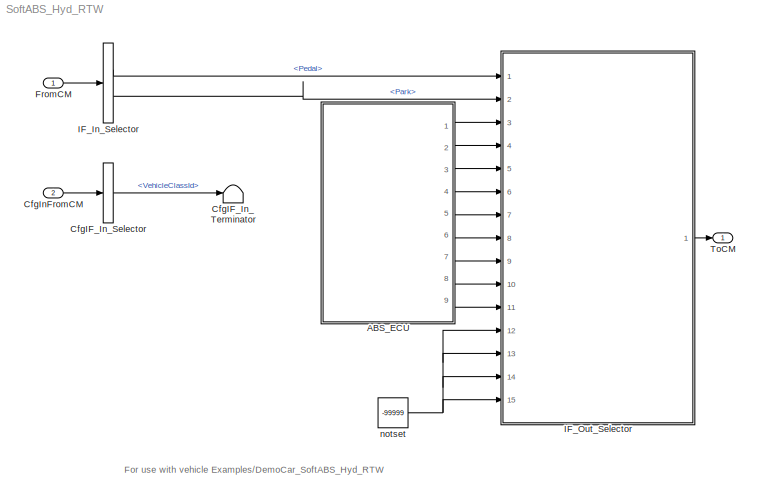
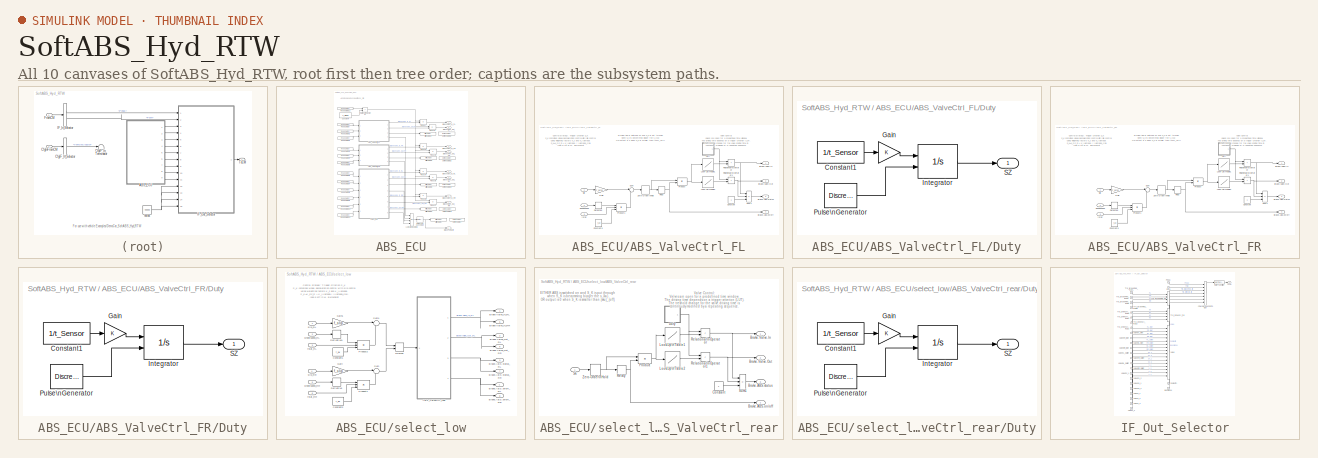
[diagram: thumbnail index - all 10 canvases of the model, root first then tree order]
MODEL SoftABS_Hyd_RTW
KIND model
CONFIG InitFcn = vehicle = 'Car'; if ~length(which('cmcmd')), cmenv; end\nSoftABS_Hyd_RTW_bus\nSoftABS_Hyd_RTW_params
CONFIG PreLoadFcn = vehicle = 'Car'; if ~length(which('cmcmd')), cmenv; end\nSoftABS_Hyd_RTW_bus\nSoftABS_Hyd_RTW_params
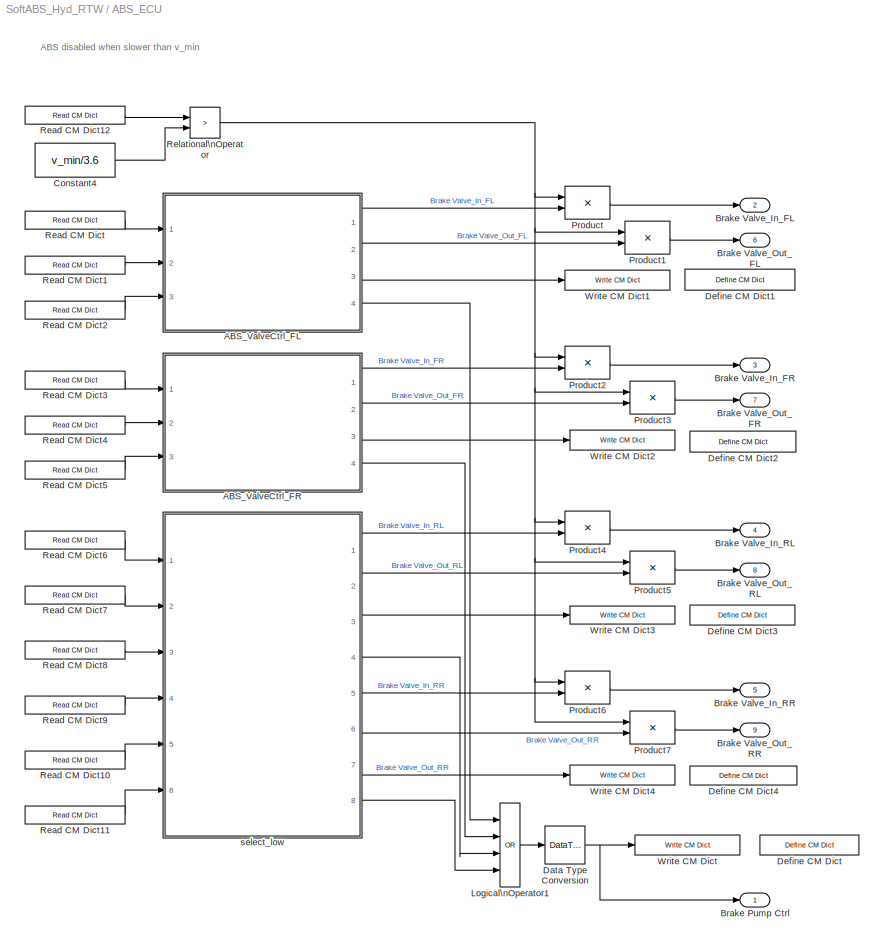
BLOCK [SubSystem] ABS_ECU
  Ports = [0, 9]
  RequestExecContextInheritance = off
  SID = 222
BLOCK [SubSystem] ABS_ECU/ABS_ValveCtrl_FL
  Ports = [3, 4]
  RequestExecContextInheritance = off
  SID = 223
BLOCK [Outport] ABS_ECU/ABS_ValveCtrl_FL/Brake.ABS.on//off
  Port = 4
  SID = 249
  VectorParamsAs1DForOutWhenUnconnected = off
BLOCK [Outport] ABS_ECU/ABS_ValveCtrl_FL/Brake.ABS.status
  Port = 3
  SID = 248
  VectorParamsAs1DForOutWhenUnconnected = off
BLOCK [Outport] ABS_ECU/ABS_ValveCtrl_FL/Brake.Valve.In
  SID = 246
  VectorParamsAs1DForOutWhenUnconnected = off
BLOCK [Outport] ABS_ECU/ABS_ValveCtrl_FL/Brake.Valve.Out
  Port = 2
  SID = 247
  VectorParamsAs1DForOutWhenUnconnected = off
BLOCK [Constant] ABS_ECU/ABS_ValveCtrl_FL/Constant
  SID = 227
BLOCK [Constant] ABS_ECU/ABS_ValveCtrl_FL/Constant3
  SID = 228
  Value = f_ax
BLOCK [Derivative] ABS_ECU/ABS_ValveCtrl_FL/Derivative
  SID = 229
BLOCK [SubSystem] ABS_ECU/ABS_ValveCtrl_FL/Duty
  Ports = [0, 1]
  RequestExecContextInheritance = off
  SID = 230
BLOCK [Constant] ABS_ECU/ABS_ValveCtrl_FL/Duty/Constant1
  SID = 231
  Value = 1/t_Sensor
BLOCK [Gain] ABS_ECU/ABS_ValveCtrl_FL/Duty/Gain
  SID = 367
BLOCK [Integrator] ABS_ECU/ABS_ValveCtrl_FL/Duty/Integrator
  ExternalReset = either
  Ports = [2, 1]
  SID = 232
BLOCK [DiscretePulseGenerator] ABS_ECU/ABS_ValveCtrl_FL/Duty/Pulse\nGenerator
  Period = t_Sensor*2
  Ports = [0, 1]
  PulseType = Time based
  PulseWidth = 50
  SID = 233
BLOCK [Outport] ABS_ECU/ABS_ValveCtrl_FL/Duty/SZ
  SID = 234
  VectorParamsAs1DForOutWhenUnconnected = off
BLOCK [Gain] ABS_ECU/ABS_ValveCtrl_FL/Gain
  Gain = f_slip
  OutDataTypeStr = Inherit: Same as input
  ParamDataTypeStr = Inherit: Same as input
  SID = 235
  SaturateOnIntegerOverflow = on
BLOCK [Lookup] ABS_ECU/ABS_ValveCtrl_FL/Look-Up\nTable1
  InputValues = Valve_LUTin_VA
  LookUpMeth = Interpolation-Use End Values
  SID = 236
  Table = ValveIn_LUTout_VA
BLOCK [Lookup] ABS_ECU/ABS_ValveCtrl_FL/Look-Up\nTable2
  InputValues = Valve_LUTin_VA
  LookUpMeth = Interpolation-Use End Values
  SID = 237
  Table = ValveOut_LUTout_VA
BLOCK [Product] ABS_ECU/ABS_ValveCtrl_FL/Product
  OutDataTypeStr = Inherit: Same as first input
  Ports = [2, 1]
  SID = 238
  SaturateOnIntegerOverflow = on
BLOCK [Product] ABS_ECU/ABS_ValveCtrl_FL/Product1
  InputSameDT = on
  Inputs = 3
  OutDataTypeStr = Inherit: Same as first input
  Ports = [3, 1]
  SID = 239
  SaturateOnIntegerOverflow = on
BLOCK [RelationalOperator] ABS_ECU/ABS_ValveCtrl_FL/Relational\nOperator
  InputSameDT = off
  Operator = <
  Ports = [2, 1]
  SID = 240
  SampleTime = 0.001
BLOCK [RelationalOperator] ABS_ECU/ABS_ValveCtrl_FL/Relational\nOperator1
  InputSameDT = off
  Operator = <
  Ports = [2, 1]
  SID = 241
  SampleTime = 0.001
BLOCK [Relay] ABS_ECU/ABS_ValveCtrl_FL/Relay
  OffSwitchValue = sku_off_VA
  OnSwitchValue = sku_VA
  SID = 242
BLOCK [Sum] ABS_ECU/ABS_ValveCtrl_FL/Sum
  InputSameDT = on
  Inputs = |--
  OutDataTypeStr = Inherit: Same as first input
  Ports = [2, 1]
  SID = 243
  SaturateOnIntegerOverflow = on
BLOCK [Sum] ABS_ECU/ABS_ValveCtrl_FL/Sum1
  IconShape = rectangular
  Inputs = --+
  Ports = [3, 1]
  SID = 244
  SaturateOnIntegerOverflow = on
BLOCK [ZeroOrderHold] ABS_ECU/ABS_ValveCtrl_FL/Zero-Order\nHold
  SID = 245
  SampleTime = t_Sensor
BLOCK [Inport] ABS_ECU/ABS_ValveCtrl_FL/rstat
  Port = 3
  SID = 226
BLOCK [Inport] ABS_ECU/ABS_ValveCtrl_FL/slip
  SID = 224
BLOCK [Inport] ABS_ECU/ABS_ValveCtrl_FL/wheelspeed
  Port = 2
  SID = 225
BLOCK [SubSystem] ABS_ECU/ABS_ValveCtrl_FR
  Ports = [3, 4]
  RequestExecContextInheritance = off
  SID = 250
BLOCK [Outport] ABS_ECU/ABS_ValveCtrl_FR/Brake.ABS.on//off
  Port = 4
  SID = 276
  VectorParamsAs1DForOutWhenUnconnected = off
BLOCK [Outport] ABS_ECU/ABS_ValveCtrl_FR/Brake.ABS.status
  Port = 3
  SID = 275
  VectorParamsAs1DForOutWhenUnconnected = off
BLOCK [Outport] ABS_ECU/ABS_ValveCtrl_FR/Brake.Valve.In
  SID = 273
  VectorParamsAs1DForOutWhenUnconnected = off
BLOCK [Outport] ABS_ECU/ABS_ValveCtrl_FR/Brake.Valve.Out
  Port = 2
  SID = 274
  VectorParamsAs1DForOutWhenUnconnected = off
BLOCK [Constant] ABS_ECU/ABS_ValveCtrl_FR/Constant
  SID = 254
BLOCK [Constant] ABS_ECU/ABS_ValveCtrl_FR/Constant3
  SID = 255
  Value = f_ax
BLOCK [Derivative] ABS_ECU/ABS_ValveCtrl_FR/Derivative
  SID = 256
BLOCK [SubSystem] ABS_ECU/ABS_ValveCtrl_FR/Duty
  Ports = [0, 1]
  RequestExecContextInheritance = off
  SID = 257
BLOCK [Constant] ABS_ECU/ABS_ValveCtrl_FR/Duty/Constant1
  SID = 258
  Value = 1/t_Sensor
BLOCK [Gain] ABS_ECU/ABS_ValveCtrl_FR/Duty/Gain
  SID = 368
BLOCK [Integrator] ABS_ECU/ABS_ValveCtrl_FR/Duty/Integrator
  ExternalReset = either
  Ports = [2, 1]
  SID = 259
BLOCK [DiscretePulseGenerator] ABS_ECU/ABS_ValveCtrl_FR/Duty/Pulse\nGenerator
  Period = t_Sensor*2
  Ports = [0, 1]
  PulseType = Time based
  PulseWidth = 50
  SID = 260
BLOCK [Outport] ABS_ECU/ABS_ValveCtrl_FR/Duty/SZ
  SID = 261
  VectorParamsAs1DForOutWhenUnconnected = off
BLOCK [Gain] ABS_ECU/ABS_ValveCtrl_FR/Gain
  Gain = f_slip
  OutDataTypeStr = Inherit: Same as input
  ParamDataTypeStr = Inherit: Same as input
  SID = 262
  SaturateOnIntegerOverflow = on
BLOCK [Lookup] ABS_ECU/ABS_ValveCtrl_FR/Look-Up\nTable1
  InputValues = Valve_LUTin_VA
  LookUpMeth = Interpolation-Use End Values
  SID = 263
  Table = ValveIn_LUTout_VA
BLOCK [Lookup] ABS_ECU/ABS_ValveCtrl_FR/Look-Up\nTable2
  InputValues = Valve_LUTin_VA
  LookUpMeth = Interpolation-Use End Values
  SID = 264
  Table = ValveOut_LUTout_VA
BLOCK [Product] ABS_ECU/ABS_ValveCtrl_FR/Product
  OutDataTypeStr = Inherit: Same as first input
  Ports = [2, 1]
  SID = 265
  SaturateOnIntegerOverflow = on
BLOCK [Product] ABS_ECU/ABS_ValveCtrl_FR/Product1
  InputSameDT = on
  Inputs = 3
  OutDataTypeStr = Inherit: Same as first input
  Ports = [3, 1]
  SID = 266
  SaturateOnIntegerOverflow = on
BLOCK [RelationalOperator] ABS_ECU/ABS_ValveCtrl_FR/Relational\nOperator
  InputSameDT = off
  Operator = <
  Ports = [2, 1]
  SID = 267
  SampleTime = 0.001
BLOCK [RelationalOperator] ABS_ECU/ABS_ValveCtrl_FR/Relational\nOperator1
  InputSameDT = off
  Operator = <
  Ports = [2, 1]
  SID = 268
  SampleTime = 0.001
BLOCK [Relay] ABS_ECU/ABS_ValveCtrl_FR/Relay
  OffSwitchValue = sku_off_VA
  OnSwitchValue = sku_VA
  SID = 269
BLOCK [Sum] ABS_ECU/ABS_ValveCtrl_FR/Sum
  InputSameDT = on
  Inputs = |--
  OutDataTypeStr = Inherit: Same as first input
  Ports = [2, 1]
  SID = 270
  SaturateOnIntegerOverflow = on
BLOCK [Sum] ABS_ECU/ABS_ValveCtrl_FR/Sum1
  IconShape = rectangular
  Inputs = --+
  Ports = [3, 1]
  SID = 271
  SaturateOnIntegerOverflow = on
BLOCK [ZeroOrderHold] ABS_ECU/ABS_ValveCtrl_FR/Zero-Order\nHold
  SID = 272
  SampleTime = t_Sensor
BLOCK [Inport] ABS_ECU/ABS_ValveCtrl_FR/rstat
  Port = 3
  SID = 253
BLOCK [Inport] ABS_ECU/ABS_ValveCtrl_FR/slip
  SID = 251
BLOCK [Inport] ABS_ECU/ABS_ValveCtrl_FR/wheelspeed
  Port = 2
  SID = 252
BLOCK [Outport] ABS_ECU/Brake Pump Ctrl
  SID = 357
  VectorParamsAs1DForOutWhenUnconnected = off
BLOCK [Outport] ABS_ECU/Brake Valve_In_FL
  Port = 2
  SID = 358
  VectorParamsAs1DForOutWhenUnconnected = off
BLOCK [Outport] ABS_ECU/Brake Valve_In_FR
  Port = 3
  SID = 359
  VectorParamsAs1DForOutWhenUnconnected = off
BLOCK [Outport] ABS_ECU/Brake Valve_In_RL
  Port = 4
  SID = 360
  VectorParamsAs1DForOutWhenUnconnected = off
BLOCK [Outport] ABS_ECU/Brake Valve_In_RR
  Port = 5
  SID = 361
  VectorParamsAs1DForOutWhenUnconnected = off
BLOCK [Outport] ABS_ECU/Brake Valve_Out_FL
  Port = 6
  SID = 362
  VectorParamsAs1DForOutWhenUnconnected = off
BLOCK [Outport] ABS_ECU/Brake Valve_Out_FR
  Port = 7
  SID = 363
  VectorParamsAs1DForOutWhenUnconnected = off
BLOCK [Outport] ABS_ECU/Brake Valve_Out_RL
  Port = 8
  SID = 364
  VectorParamsAs1DForOutWhenUnconnected = off
BLOCK [Outport] ABS_ECU/Brake Valve_Out_RR
  Port = 9
  SID = 365
  VectorParamsAs1DForOutWhenUnconnected = off
BLOCK [Constant] ABS_ECU/Constant4
  SID = 277
  Value = v_min/3.6
BLOCK [DataTypeConversion] ABS_ECU/Data Type Conversion
  OutDataTypeStr = double
  RndMeth = Floor
  SID = 366
  SaturateOnIntegerOverflow = off
BLOCK [Reference] ABS_ECU/Define CM Dict  REF=CarMaker4SL/Define CM Dict
  Ports = []
  SID = 278
  SourceBlock = CarMaker4SL/Define CM Dict
  SourceProductName = CarMaker4SL
  SourceType = Define CarMaker Dictionary Variable
  xdvaplace = None
  xfirststate = 0
  xinitial = 0
  xmono = off
  xname = ABS.actv
  xnstates = 2
  xtype = UChar
BLOCK [Reference] ABS_ECU/Define CM Dict1  REF=CarMaker4SL/Define CM Dict
  Ports = []
  SID = 279
  SourceBlock = CarMaker4SL/Define CM Dict
  SourceProductName = CarMaker4SL
  SourceType = Define CarMaker Dictionary Variable
  xdvaplace = None
  xfirststate = 0
  xinitial = 0
  xmono = off
  xname = ABS.Status_FL
  xnstates = 4
  xtype = Char
BLOCK [Reference] ABS_ECU/Define CM Dict2  REF=CarMaker4SL/Define CM Dict
  Ports = []
  SID = 280
  SourceBlock = CarMaker4SL/Define CM Dict
  SourceProductName = CarMaker4SL
  SourceType = Define CarMaker Dictionary Variable
  xdvaplace = None
  xfirststate = 0
  xinitial = 0
  xmono = off
  xname = ABS.Status_FR
  xnstates = 4
  xtype = Char
BLOCK [Reference] ABS_ECU/Define CM Dict3  REF=CarMaker4SL/Define CM Dict
  Ports = []
  SID = 281
  SourceBlock = CarMaker4SL/Define CM Dict
  SourceProductName = CarMaker4SL
  SourceType = Define CarMaker Dictionary Variable
  xdvaplace = None
  xfirststate = 0
  xinitial = 0
  xmono = off
  xname = ABS.Status_RL
  xnstates = 4
  xtype = Char
BLOCK [Reference] ABS_ECU/Define CM Dict4  REF=CarMaker4SL/Define CM Dict
  Ports = []
  SID = 282
  SourceBlock = CarMaker4SL/Define CM Dict
  SourceProductName = CarMaker4SL
  SourceType = Define CarMaker Dictionary Variable
  xdvaplace = None
  xfirststate = 0
  xinitial = 0
  xmono = off
  xname = ABS.Status_RR
  xnstates = 4
  xtype = Char
BLOCK [Logic] ABS_ECU/Logical\nOperator1
  AllPortsSameDT = off
  Inputs = 4
  Operator = OR
  OutDataTypeStr = fixdt(1,16)
  Ports = [4, 1]
  SID = 283
BLOCK [Product] ABS_ECU/Product
  OutDataTypeStr = double
  Ports = [2, 1]
  SID = 284
  SaturateOnIntegerOverflow = on
BLOCK [Product] ABS_ECU/Product1
  OutDataTypeStr = double
  Ports = [2, 1]
  SID = 285
  SaturateOnIntegerOverflow = on
BLOCK [Product] ABS_ECU/Product2
  OutDataTypeStr = double
  Ports = [2, 1]
  SID = 286
  SaturateOnIntegerOverflow = on
BLOCK [Product] ABS_ECU/Product3
  OutDataTypeStr = double
  Ports = [2, 1]
  SID = 287
  SaturateOnIntegerOverflow = on
BLOCK [Product] ABS_ECU/Product4
  OutDataTypeStr = double
  Ports = [2, 1]
  SID = 288
  SaturateOnIntegerOverflow = on
BLOCK [Product] ABS_ECU/Product5
  OutDataTypeStr = double
  Ports = [2, 1]
  SID = 289
  SaturateOnIntegerOverflow = on
BLOCK [Product] ABS_ECU/Product6
  OutDataTypeStr = double
  Ports = [2, 1]
  SID = 290
  SaturateOnIntegerOverflow = on
BLOCK [Product] ABS_ECU/Product7
  OutDataTypeStr = double
  Ports = [2, 1]
  SID = 291
  SaturateOnIntegerOverflow = on
BLOCK [Reference] ABS_ECU/Read CM Dict  REF=CarMaker4SL/Read CM Dict
  Ports = [0, 1]
  SID = 292
  SourceBlock = CarMaker4SL/Read CM Dict
  SourceProductName = CarMaker4SL
  SourceType = Read CarMaker Dictionary Variable(s)
  xname = Car.LongSlipFL
  xsync = off
BLOCK [Reference] ABS_ECU/Read CM Dict1  REF=CarMaker4SL/Read CM Dict
  Ports = [0, 1]
  SID = 293
  SourceBlock = CarMaker4SL/Read CM Dict
  SourceProductName = CarMaker4SL
  SourceType = Read CarMaker Dictionary Variable(s)
  xname = Car.WheelSpd_FL
  xsync = off
BLOCK [Reference] ABS_ECU/Read CM Dict10  REF=CarMaker4SL/Read CM Dict
  Ports = [0, 1]
  SID = 294
  SourceBlock = CarMaker4SL/Read CM Dict
  SourceProductName = CarMaker4SL
  SourceType = Read CarMaker Dictionary Variable(s)
  xname = Car.WheelSpd_RR
  xsync = off
BLOCK [Reference] ABS_ECU/Read CM Dict11  REF=CarMaker4SL/Read CM Dict
  Ports = [0, 1]
  SID = 295
  SourceBlock = CarMaker4SL/Read CM Dict
  SourceProductName = CarMaker4SL
  SourceType = Read CarMaker Dictionary Variable(s)
  xname = Car.WRR.Radius
  xsync = off
BLOCK [Reference] ABS_ECU/Read CM Dict12  REF=CarMaker4SL/Read CM Dict
  Ports = [0, 1]
  SID = 296
  SourceBlock = CarMaker4SL/Read CM Dict
  SourceProductName = CarMaker4SL
  SourceType = Read CarMaker Dictionary Variable(s)
  xname = Car.v
  xsync = off
BLOCK [Reference] ABS_ECU/Read CM Dict2  REF=CarMaker4SL/Read CM Dict
  Ports = [0, 1]
  SID = 297
  SourceBlock = CarMaker4SL/Read CM Dict
  SourceProductName = CarMaker4SL
  SourceType = Read CarMaker Dictionary Variable(s)
  xname = Car.WFL.Radius
  xsync = off
BLOCK [Reference] ABS_ECU/Read CM Dict3  REF=CarMaker4SL/Read CM Dict
  Ports = [0, 1]
  SID = 298
  SourceBlock = CarMaker4SL/Read CM Dict
  SourceProductName = CarMaker4SL
  SourceType = Read CarMaker Dictionary Variable(s)
  xname = Car.LongSlipFR
  xsync = off
BLOCK [Reference] ABS_ECU/Read CM Dict4  REF=CarMaker4SL/Read CM Dict
  Ports = [0, 1]
  SID = 299
  SourceBlock = CarMaker4SL/Read CM Dict
  SourceProductName = CarMaker4SL
  SourceType = Read CarMaker Dictionary Variable(s)
  xname = Car.WheelSpd_FR
  xsync = off
BLOCK [Reference] ABS_ECU/Read CM Dict5  REF=CarMaker4SL/Read CM Dict
  Ports = [0, 1]
  SID = 300
  SourceBlock = CarMaker4SL/Read CM Dict
  SourceProductName = CarMaker4SL
  SourceType = Read CarMaker Dictionary Variable(s)
  xname = Car.WFR.Radius
  xsync = off
BLOCK [Reference] ABS_ECU/Read CM Dict6  REF=CarMaker4SL/Read CM Dict
  Ports = [0, 1]
  SID = 301
  SourceBlock = CarMaker4SL/Read CM Dict
  SourceProductName = CarMaker4SL
  SourceType = Read CarMaker Dictionary Variable(s)
  xname = Car.LongSlipRL
  xsync = off
BLOCK [Reference] ABS_ECU/Read CM Dict7  REF=CarMaker4SL/Read CM Dict
  Ports = [0, 1]
  SID = 302
  SourceBlock = CarMaker4SL/Read CM Dict
  SourceProductName = CarMaker4SL
  SourceType = Read CarMaker Dictionary Variable(s)
  xname = Car.WheelSpd_RL
  xsync = off
BLOCK [Reference] ABS_ECU/Read CM Dict8  REF=CarMaker4SL/Read CM Dict
  Ports = [0, 1]
  SID = 303
  SourceBlock = CarMaker4SL/Read CM Dict
  SourceProductName = CarMaker4SL
  SourceType = Read CarMaker Dictionary Variable(s)
  xname = Car.WRL.Radius
  xsync = off
BLOCK [Reference] ABS_ECU/Read CM Dict9  REF=CarMaker4SL/Read CM Dict
  Ports = [0, 1]
  SID = 304
  SourceBlock = CarMaker4SL/Read CM Dict
  SourceProductName = CarMaker4SL
  SourceType = Read CarMaker Dictionary Variable(s)
  xname = Car.LongSlipRR
  xsync = off
BLOCK [RelationalOperator] ABS_ECU/Relational\nOperator
  InputSameDT = off
  Operator = >
  Ports = [2, 1]
  SID = 305
BLOCK [Reference] ABS_ECU/Write CM Dict  REF=CarMaker4SL/Write CM Dict
  Ports = [1]
  SID = 306
  SourceBlock = CarMaker4SL/Write CM Dict
  SourceProductName = CarMaker4SL
  SourceType = Write CarMaker Dictionary Variable(s)
  xname = ABS.actv
  xsync = off
BLOCK [Reference] ABS_ECU/Write CM Dict1  REF=CarMaker4SL/Write CM Dict
  Ports = [1]
  SID = 307
  SourceBlock = CarMaker4SL/Write CM Dict
  SourceProductName = CarMaker4SL
  SourceType = Write CarMaker Dictionary Variable(s)
  xname = ABS.Status_FL
  xsync = off
BLOCK [Reference] ABS_ECU/Write CM Dict2  REF=CarMaker4SL/Write CM Dict
  Ports = [1]
  SID = 308
  SourceBlock = CarMaker4SL/Write CM Dict
  SourceProductName = CarMaker4SL
  SourceType = Write CarMaker Dictionary Variable(s)
  xname = ABS.Status_FR
  xsync = off
BLOCK [Reference] ABS_ECU/Write CM Dict3  REF=CarMaker4SL/Write CM Dict
  Ports = [1]
  SID = 309
  SourceBlock = CarMaker4SL/Write CM Dict
  SourceProductName = CarMaker4SL
  SourceType = Write CarMaker Dictionary Variable(s)
  xname = ABS.Status_RL
  xsync = off
BLOCK [Reference] ABS_ECU/Write CM Dict4  REF=CarMaker4SL/Write CM Dict
  Ports = [1]
  SID = 310
  SourceBlock = CarMaker4SL/Write CM Dict
  SourceProductName = CarMaker4SL
  SourceType = Write CarMaker Dictionary Variable(s)
  xname = ABS.Status_RR
  xsync = off
BLOCK [SubSystem] ABS_ECU/select_low
  Ports = [6, 8]
  RequestExecContextInheritance = off
  SID = 311
BLOCK [SubSystem] ABS_ECU/select_low/ABS_ValveCtrl_rear
  Ports = [1, 4]
  RequestExecContextInheritance = off
  SID = 318
BLOCK [Outport] ABS_ECU/select_low/ABS_ValveCtrl_rear/Brake.ABS.on//off
  Port = 4
  SID = 337
  VectorParamsAs1DForOutWhenUnconnected = off
BLOCK [Outport] ABS_ECU/select_low/ABS_ValveCtrl_rear/Brake.ABS.status
  Port = 3
  SID = 336
  VectorParamsAs1DForOutWhenUnconnected = off
BLOCK [Outport] ABS_ECU/select_low/ABS_ValveCtrl_rear/Brake.Valve.In
  SID = 334
  VectorParamsAs1DForOutWhenUnconnected = off
BLOCK [Outport] ABS_ECU/select_low/ABS_ValveCtrl_rear/Brake.Valve.Out
  Port = 2
  SID = 335
  VectorParamsAs1DForOutWhenUnconnected = off
BLOCK [Constant] ABS_ECU/select_low/ABS_ValveCtrl_rear/Constant
  SID = 320
BLOCK [SubSystem] ABS_ECU/select_low/ABS_ValveCtrl_rear/Duty
  Ports = [0, 1]
  RequestExecContextInheritance = off
  SID = 321
BLOCK [Constant] ABS_ECU/select_low/ABS_ValveCtrl_rear/Duty/Constant1
  SID = 322
  Value = 1/t_Sensor
BLOCK [Gain] ABS_ECU/select_low/ABS_ValveCtrl_rear/Duty/Gain
  SID = 369
BLOCK [Integrator] ABS_ECU/select_low/ABS_ValveCtrl_rear/Duty/Integrator
  ExternalReset = either
  Ports = [2, 1]
  SID = 323
BLOCK [DiscretePulseGenerator] ABS_ECU/select_low/ABS_ValveCtrl_rear/Duty/Pulse\nGenerator
  Period = t_Sensor*2
  Ports = [0, 1]
  PulseType = Time based
  PulseWidth = 50
  SID = 324
BLOCK [Outport] ABS_ECU/select_low/ABS_ValveCtrl_rear/Duty/SZ
  SID = 325
  VectorParamsAs1DForOutWhenUnconnected = off
BLOCK [Lookup] ABS_ECU/select_low/ABS_ValveCtrl_rear/Look-Up\nTable1
  InputValues = Valve_LUTin_HA
  LookUpMeth = Interpolation-Use End Values
  SID = 326
  Table = ValveIn_LUTout_HA
BLOCK [Lookup] ABS_ECU/select_low/ABS_ValveCtrl_rear/Look-Up\nTable2
  InputValues = Valve_LUTin_HA
  LookUpMeth = Interpolation-Use End Values
  SID = 327
  Table = ValveOut_LUTout_HA
BLOCK [Product] ABS_ECU/select_low/ABS_ValveCtrl_rear/Product
  OutDataTypeStr = Inherit: Same as first input
  Ports = [2, 1]
  SID = 328
  SaturateOnIntegerOverflow = on
BLOCK [RelationalOperator] ABS_ECU/select_low/ABS_ValveCtrl_rear/Relational\nOperator
  InputSameDT = off
  Operator = <
  Ports = [2, 1]
  SID = 329
  SampleTime = 0.001
BLOCK [RelationalOperator] ABS_ECU/select_low/ABS_ValveCtrl_rear/Relational\nOperator1
  InputSameDT = off
  Operator = <
  Ports = [2, 1]
  SID = 330
  SampleTime = 0.001
BLOCK [Relay] ABS_ECU/select_low/ABS_ValveCtrl_rear/Relay
  OffSwitchValue = sku_off_HA
  OnSwitchValue = sku_HA
  SID = 331
BLOCK [Inport] ABS_ECU/select_low/ABS_ValveCtrl_rear/Sk
  SID = 319
BLOCK [Sum] ABS_ECU/select_low/ABS_ValveCtrl_rear/Sum1
  IconShape = rectangular
  Inputs = --+
  Ports = [3, 1]
  SID = 332
  SaturateOnIntegerOverflow = on
BLOCK [ZeroOrderHold] ABS_ECU/select_low/ABS_ValveCtrl_rear/Zero-Order\nHold
  SID = 333
  SampleTime = t_Sensor
BLOCK [Outport] ABS_ECU/select_low/Brake Valve_In_RL
  SID = 349
  VectorParamsAs1DForOutWhenUnconnected = off
BLOCK [Outport] ABS_ECU/select_low/Brake Valve_In_RR
  Port = 5
  SID = 353
  VectorParamsAs1DForOutWhenUnconnected = off
BLOCK [Outport] ABS_ECU/select_low/Brake Valve_Out_RL
  Port = 2
  SID = 350
  VectorParamsAs1DForOutWhenUnconnected = off
BLOCK [Outport] ABS_ECU/select_low/Brake Valve_Out_RR
  Port = 6
  SID = 354
  VectorParamsAs1DForOutWhenUnconnected = off
BLOCK [Outport] ABS_ECU/select_low/Brake.ABS.on//off_RL
  Port = 4
  SID = 352
  VectorParamsAs1DForOutWhenUnconnected = off
BLOCK [Outport] ABS_ECU/select_low/Brake.ABS.on//off_RR
  Port = 8
  SID = 356
  VectorParamsAs1DForOutWhenUnconnected = off
BLOCK [Outport] ABS_ECU/select_low/Brake.ABS.status_RL
  Port = 3
  SID = 351
  VectorParamsAs1DForOutWhenUnconnected = off
BLOCK [Outport] ABS_ECU/select_low/Brake.ABS.status_RR
  Port = 7
  SID = 355
  VectorParamsAs1DForOutWhenUnconnected = off
BLOCK [Constant] ABS_ECU/select_low/Constant1
  SID = 338
  Value = f_ax
BLOCK [Constant] ABS_ECU/select_low/Constant3
  SID = 339
  Value = f_ax
BLOCK [Derivative] ABS_ECU/select_low/Derivative
  SID = 340
BLOCK [Derivative] ABS_ECU/select_low/Derivative1
  SID = 341
BLOCK [Gain] ABS_ECU/select_low/Gain
  Gain = f_slip
  OutDataTypeStr = Inherit: Same as input
  ParamDataTypeStr = Inherit: Same as input
  SID = 342
  SaturateOnIntegerOverflow = on
BLOCK [Gain] ABS_ECU/select_low/Gain1
  Gain = f_slip
  OutDataTypeStr = Inherit: Same as input
  ParamDataTypeStr = Inherit: Same as input
  SID = 343
  SaturateOnIntegerOverflow = on
BLOCK [MinMax] ABS_ECU/select_low/MinMax
  Function = max
  InputSameDT = on
  Inputs = 2
  Ports = [2, 1]
  SID = 344
  SaturateOnIntegerOverflow = on
BLOCK [Product] ABS_ECU/select_low/Product1
  InputSameDT = on
  Inputs = 3
  OutDataTypeStr = Inherit: Same as first input
  Ports = [3, 1]
  SID = 345
  SaturateOnIntegerOverflow = on
BLOCK [Product] ABS_ECU/select_low/Product2
  InputSameDT = on
  Inputs = 3
  OutDataTypeStr = Inherit: Same as first input
  Ports = [3, 1]
  SID = 346
  SaturateOnIntegerOverflow = on
BLOCK [Sum] ABS_ECU/select_low/Sum
  InputSameDT = on
  Inputs = |--
  OutDataTypeStr = Inherit: Same as first input
  Ports = [2, 1]
  SID = 347
  SaturateOnIntegerOverflow = on
BLOCK [Sum] ABS_ECU/select_low/Sum1
  InputSameDT = on
  Inputs = |--
  OutDataTypeStr = Inherit: Same as first input
  Ports = [2, 1]
  SID = 348
  SaturateOnIntegerOverflow = on
BLOCK [Inport] ABS_ECU/select_low/rstat_RL
  Port = 3
  SID = 314
BLOCK [Inport] ABS_ECU/select_low/rstat_RR
  Port = 6
  SID = 317
BLOCK [Inport] ABS_ECU/select_low/slip_RL
  SID = 312
BLOCK [Inport] ABS_ECU/select_low/slip_RR
  Port = 4
  SID = 315
BLOCK [Inport] ABS_ECU/select_low/wheelspeed_RL
  Port = 2
  SID = 313
BLOCK [Inport] ABS_ECU/select_low/wheelspeed_RR
  Port = 5
  SID = 316
BLOCK [BusSelector] CfgIF_In_Selector
  OutputSignals = VehicleClassId
  Ports = [1, 1]
  SID = 9
BLOCK [Terminator] CfgIF_In_Terminator
  SID = 10
BLOCK [Inport] CfgInFromCM
  OutDataTypeStr = Bus: cmHydBrakeControlCfgIn
  Port = 2
  SID = 8
BLOCK [Inport] FromCM
  OutDataTypeStr = Bus: cmHydBrakeControlIn
  SID = 1
BLOCK [BusSelector] IF_In_Selector
  OutputSignals = Pedal,Park
  Ports = [1, 2]
  SID = 2
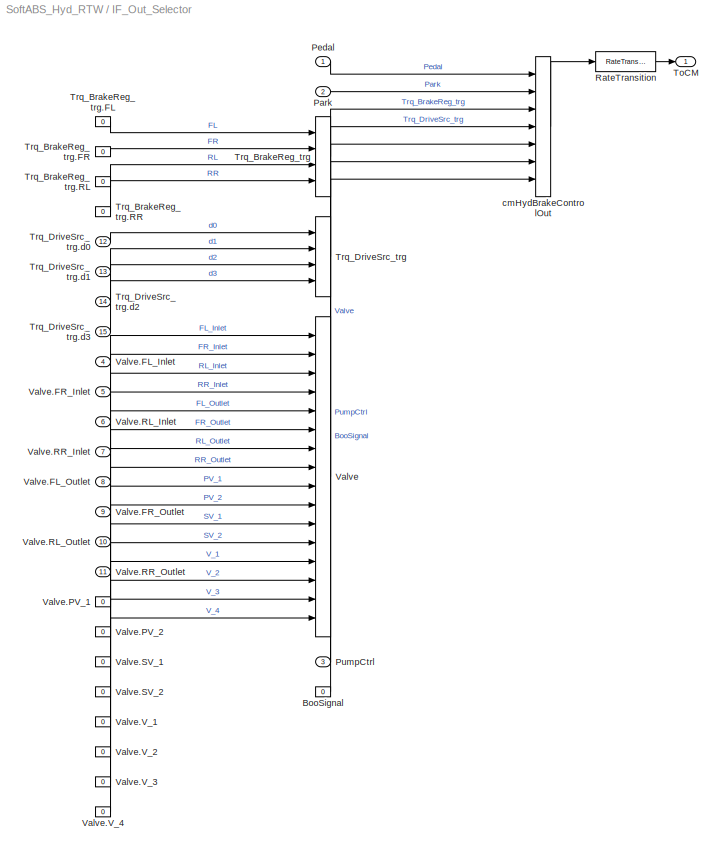
BLOCK [SubSystem] IF_Out_Selector
  OpenFcn = cmSignalSelect('SignalSelection_CB',gcb)
  Ports = [15, 1]
  RequestExecContextInheritance = off
  SID = 380
  UserData = DataTag0
  UserDataPersistent = on
BLOCK [Constant] IF_Out_Selector/BooSignal
  SID = 392
  Value = 0
BLOCK [Inport] IF_Out_Selector/Park
  Port = 2
  SID = 382
BLOCK [Inport] IF_Out_Selector/Pedal
  SID = 381
BLOCK [Inport] IF_Out_Selector/PumpCtrl
  Port = 3
  SID = 383
BLOCK [RateTransition] IF_Out_Selector/RateTransition
  OutPortSampleTime = str2num(get_param(bdroot,'FixedStep'))
  SID = 393
BLOCK [Outport] IF_Out_Selector/ToCM
  SID = 414
  VectorParamsAs1DForOutWhenUnconnected = off
BLOCK [BusCreator] IF_Out_Selector/Trq_BrakeReg_trg
  InheritFromInputs = on
  Inputs = 4
  Ports = [4, 1]
  SID = 394
BLOCK [Constant] IF_Out_Selector/Trq_BrakeReg_trg.FL
  SID = 395
  Value = 0
BLOCK [Constant] IF_Out_Selector/Trq_BrakeReg_trg.FR
  SID = 396
  Value = 0
BLOCK [Constant] IF_Out_Selector/Trq_BrakeReg_trg.RL
  SID = 397
  Value = 0
BLOCK [Constant] IF_Out_Selector/Trq_BrakeReg_trg.RR
  SID = 398
  Value = 0
BLOCK [BusCreator] IF_Out_Selector/Trq_DriveSrc_trg
  InheritFromInputs = on
  Inputs = 4
  Ports = [4, 1]
  SID = 399
BLOCK [Inport] IF_Out_Selector/Trq_DriveSrc_trg.d0
  Port = 12
  SID = 415
BLOCK [Inport] IF_Out_Selector/Trq_DriveSrc_trg.d1
  Port = 13
  SID = 416
BLOCK [Inport] IF_Out_Selector/Trq_DriveSrc_trg.d2
  Port = 14
  SID = 417
BLOCK [Inport] IF_Out_Selector/Trq_DriveSrc_trg.d3
  Port = 15
  SID = 418
BLOCK [BusCreator] IF_Out_Selector/Valve
  InheritFromInputs = on
  Inputs = 16
  Ports = [16, 1]
  SID = 404
BLOCK [Inport] IF_Out_Selector/Valve.FL_Inlet
  Port = 4
  SID = 384
BLOCK [Inport] IF_Out_Selector/Valve.FL_Outlet
  Port = 8
  SID = 388
BLOCK [Inport] IF_Out_Selector/Valve.FR_Inlet
  Port = 5
  SID = 385
BLOCK [Inport] IF_Out_Selector/Valve.FR_Outlet
  Port = 9
  SID = 389
BLOCK [Constant] IF_Out_Selector/Valve.PV_1
  SID = 405
  Value = 0
BLOCK [Constant] IF_Out_Selector/Valve.PV_2
  SID = 406
  Value = 0
BLOCK [Inport] IF_Out_Selector/Valve.RL_Inlet
  Port = 6
  SID = 386
BLOCK [Inport] IF_Out_Selector/Valve.RL_Outlet
  Port = 10
  SID = 390
BLOCK [Inport] IF_Out_Selector/Valve.RR_Inlet
  Port = 7
  SID = 387
BLOCK [Inport] IF_Out_Selector/Valve.RR_Outlet
  Port = 11
  SID = 391
BLOCK [Constant] IF_Out_Selector/Valve.SV_1
  SID = 407
  Value = 0
BLOCK [Constant] IF_Out_Selector/Valve.SV_2
  SID = 408
  Value = 0
BLOCK [Constant] IF_Out_Selector/Valve.V_1
  SID = 409
  Value = 0
BLOCK [Constant] IF_Out_Selector/Valve.V_2
  SID = 410
  Value = 0
BLOCK [Constant] IF_Out_Selector/Valve.V_3
  SID = 411
  Value = 0
BLOCK [Constant] IF_Out_Selector/Valve.V_4
  SID = 412
  Value = 0
BLOCK [BusCreator] IF_Out_Selector/cmHydBrakeControlOut
  InheritFromInputs = on
  Inputs = 7
  Ports = [7, 1]
  SID = 413
BLOCK [Outport] ToCM
  OutDataTypeStr = Bus: cmHydBrakeControlOut
  SID = 4
  VectorParamsAs1DForOutWhenUnconnected = off
BLOCK [Constant] notset
  SID = 419
  Value = -99999
ANNOTATION (root): For use with vehicle Examples/DemoCar_SoftABS_Hyd_RTW
ANNOTATION ABS_ECU: \nABS disabled when slower than v_min\n
ANNOTATION ABS_ECU/ABS_ValveCtrl_FL: \nControl strategy: Trigger criterion S_K\nS_K combines wheel decceleration control with slip control \nusing weighting factors K_z and K_\\lambda\nS_K=K_z*z_R + K_\\lambda * \\lambda_{rel}\n(see p.127 in M. Burckhardt \nFahrwerktechnik:Radschlupfregelsysteme)\n
ANNOTATION ABS_ECU/ABS_ValveCtrl_FL: \nEITHER ABS is switched on and S_K is put through\n when S_K is becomming bigger the s_{ku} \nOR output is 0 when S_K is smaller than {sku}_{off}\n
ANNOTATION ABS_ECU/ABS_ValveCtrl_FL: \nValve Control:\nValves are open for a predefined time window. \nThe driving time depends on a trigger criterion (LUT).\nThe treshold change for the valve driving time is \ncontinously modified by a repeating sequence.\n
ANNOTATION ABS_ECU/ABS_ValveCtrl_FR: \nControl strategy: Trigger criterion S_K\nS_K combines wheel decceleration control with slip control \nusing weighting factors K_z and K_\\lambda\nS_K=K_z*z_R + K_\\lambda * \\lambda_{rel}\n(see p.127 in M. Burckhardt \nFahrwerktechnik:Radschlupfregelsysteme)\n
ANNOTATION ABS_ECU/ABS_ValveCtrl_FR: \nEITHER ABS is switched on and S_K is put through\n when S_K is becomming bigger the s_{ku} \nOR output is 0 when S_K is smaller than {sku}_{off}\n
ANNOTATION ABS_ECU/ABS_ValveCtrl_FR: \nValve Control:\nValves are open for a predefined time window. \nThe driving time depends on a trigger criterion (LUT).\nThe treshold change for the valve driving time is \ncontinously modified by a repeating sequence.\n
ANNOTATION ABS_ECU/select_low: \nControl strategy: Trigger criterion S_K\nS_K combines wheel decceleration control with slip control \nusing weighting factors K_z and K_\\lambda\nS_K=K_z*z_R + K_\\lambda * \\lambda_{rel}\n(see p.127 in M. Burckhardt \nFahrwerktechnik:Radschlupfregelsysteme)\n
ANNOTATION ABS_ECU/select_low/ABS_ValveCtrl_rear: \nEITHER ABS is switched on and S_K is put through\n when S_K is becomming bigger the s_{ku} \nOR output is 0 when S_K is smaller than {sku}_{off}\n
ANNOTATION ABS_ECU/select_low/ABS_ValveCtrl_rear: \nValve Control:\nValves are open for a predefined time window. \nThe driving time depends on a trigger criterion (LUT).\nThe treshold change for the valve driving time is \ncontinously modified by a repeating sequence.\n
LINE ABS_ECU/ABS_ValveCtrl_FL/Constant3:1 -> ABS_ECU/ABS_ValveCtrl_FL/Product1:3
LINE ABS_ECU/ABS_ValveCtrl_FL/Constant:1 -> ABS_ECU/ABS_ValveCtrl_FL/Sum1:3
LINE ABS_ECU/ABS_ValveCtrl_FL/Derivative:1 -> ABS_ECU/ABS_ValveCtrl_FL/Product1:1
LINE ABS_ECU/ABS_ValveCtrl_FL/Duty/Constant1:1 -> ABS_ECU/ABS_ValveCtrl_FL/Duty/Gain:1
LINE ABS_ECU/ABS_ValveCtrl_FL/Duty/Gain:1 -> ABS_ECU/ABS_ValveCtrl_FL/Duty/Integrator:1
LINE ABS_ECU/ABS_ValveCtrl_FL/Duty/Integrator:1 -> ABS_ECU/ABS_ValveCtrl_FL/Duty/SZ:1
LINE ABS_ECU/ABS_ValveCtrl_FL/Duty/Pulse\nGenerator:1 -> ABS_ECU/ABS_ValveCtrl_FL/Duty/Integrator:2
NET ABS_ECU/ABS_ValveCtrl_FL/Duty:1 -> ABS_ECU/ABS_ValveCtrl_FL/Relational\nOperator1:1, ABS_ECU/ABS_ValveCtrl_FL/Relational\nOperator:1
LINE ABS_ECU/ABS_ValveCtrl_FL/Gain:1 -> ABS_ECU/ABS_ValveCtrl_FL/Sum:1
LINE ABS_ECU/ABS_ValveCtrl_FL/Look-Up\nTable1:1 -> ABS_ECU/ABS_ValveCtrl_FL/Relational\nOperator:2
LINE ABS_ECU/ABS_ValveCtrl_FL/Look-Up\nTable2:1 -> ABS_ECU/ABS_ValveCtrl_FL/Relational\nOperator1:2
LINE ABS_ECU/ABS_ValveCtrl_FL/Product1:1 -> ABS_ECU/ABS_ValveCtrl_FL/Sum:2
NET ABS_ECU/ABS_ValveCtrl_FL/Product:1 -> ABS_ECU/ABS_ValveCtrl_FL/Look-Up\nTable1:1, ABS_ECU/ABS_ValveCtrl_FL/Look-Up\nTable2:1
NET ABS_ECU/ABS_ValveCtrl_FL/Relational\nOperator1:1 -> ABS_ECU/ABS_ValveCtrl_FL/Brake.Valve.Out:1, ABS_ECU/ABS_ValveCtrl_FL/Sum1:2
NET ABS_ECU/ABS_ValveCtrl_FL/Relational\nOperator:1 -> ABS_ECU/ABS_ValveCtrl_FL/Brake.Valve.In:1, ABS_ECU/ABS_ValveCtrl_FL/Sum1:1
NET ABS_ECU/ABS_ValveCtrl_FL/Relay:1 -> ABS_ECU/ABS_ValveCtrl_FL/Brake.ABS.on//off:1, ABS_ECU/ABS_ValveCtrl_FL/Product:2
LINE ABS_ECU/ABS_ValveCtrl_FL/Sum1:1 -> ABS_ECU/ABS_ValveCtrl_FL/Brake.ABS.status:1
LINE ABS_ECU/ABS_ValveCtrl_FL/Sum:1 -> ABS_ECU/ABS_ValveCtrl_FL/Zero-Order\nHold:1
NET ABS_ECU/ABS_ValveCtrl_FL/Zero-Order\nHold:1 -> ABS_ECU/ABS_ValveCtrl_FL/Product:1, ABS_ECU/ABS_ValveCtrl_FL/Relay:1
LINE ABS_ECU/ABS_ValveCtrl_FL/rstat:1 -> ABS_ECU/ABS_ValveCtrl_FL/Product1:2
LINE ABS_ECU/ABS_ValveCtrl_FL/slip:1 -> ABS_ECU/ABS_ValveCtrl_FL/Gain:1
LINE ABS_ECU/ABS_ValveCtrl_FL/wheelspeed:1 -> ABS_ECU/ABS_ValveCtrl_FL/Derivative:1
LINE ABS_ECU/ABS_ValveCtrl_FL:1 -> ABS_ECU/Product:2
LINE ABS_ECU/ABS_ValveCtrl_FL:2 -> ABS_ECU/Product1:2
LINE ABS_ECU/ABS_ValveCtrl_FL:3 -> ABS_ECU/Write CM Dict1:1
LINE ABS_ECU/ABS_ValveCtrl_FL:4 -> ABS_ECU/Logical\nOperator1:1
LINE ABS_ECU/ABS_ValveCtrl_FR/Constant3:1 -> ABS_ECU/ABS_ValveCtrl_FR/Product1:3
LINE ABS_ECU/ABS_ValveCtrl_FR/Constant:1 -> ABS_ECU/ABS_ValveCtrl_FR/Sum1:3
LINE ABS_ECU/ABS_ValveCtrl_FR/Derivative:1 -> ABS_ECU/ABS_ValveCtrl_FR/Product1:1
LINE ABS_ECU/ABS_ValveCtrl_FR/Duty/Constant1:1 -> ABS_ECU/ABS_ValveCtrl_FR/Duty/Gain:1
LINE ABS_ECU/ABS_ValveCtrl_FR/Duty/Gain:1 -> ABS_ECU/ABS_ValveCtrl_FR/Duty/Integrator:1
LINE ABS_ECU/ABS_ValveCtrl_FR/Duty/Integrator:1 -> ABS_ECU/ABS_ValveCtrl_FR/Duty/SZ:1
LINE ABS_ECU/ABS_ValveCtrl_FR/Duty/Pulse\nGenerator:1 -> ABS_ECU/ABS_ValveCtrl_FR/Duty/Integrator:2
NET ABS_ECU/ABS_ValveCtrl_FR/Duty:1 -> ABS_ECU/ABS_ValveCtrl_FR/Relational\nOperator1:1, ABS_ECU/ABS_ValveCtrl_FR/Relational\nOperator:1
LINE ABS_ECU/ABS_ValveCtrl_FR/Gain:1 -> ABS_ECU/ABS_ValveCtrl_FR/Sum:1
LINE ABS_ECU/ABS_ValveCtrl_FR/Look-Up\nTable1:1 -> ABS_ECU/ABS_ValveCtrl_FR/Relational\nOperator:2
LINE ABS_ECU/ABS_ValveCtrl_FR/Look-Up\nTable2:1 -> ABS_ECU/ABS_ValveCtrl_FR/Relational\nOperator1:2
LINE ABS_ECU/ABS_ValveCtrl_FR/Product1:1 -> ABS_ECU/ABS_ValveCtrl_FR/Sum:2
NET ABS_ECU/ABS_ValveCtrl_FR/Product:1 -> ABS_ECU/ABS_ValveCtrl_FR/Look-Up\nTable1:1, ABS_ECU/ABS_ValveCtrl_FR/Look-Up\nTable2:1
NET ABS_ECU/ABS_ValveCtrl_FR/Relational\nOperator1:1 -> ABS_ECU/ABS_ValveCtrl_FR/Brake.Valve.Out:1, ABS_ECU/ABS_ValveCtrl_FR/Sum1:2
NET ABS_ECU/ABS_ValveCtrl_FR/Relational\nOperator:1 -> ABS_ECU/ABS_ValveCtrl_FR/Brake.Valve.In:1, ABS_ECU/ABS_ValveCtrl_FR/Sum1:1
NET ABS_ECU/ABS_ValveCtrl_FR/Relay:1 -> ABS_ECU/ABS_ValveCtrl_FR/Brake.ABS.on//off:1, ABS_ECU/ABS_ValveCtrl_FR/Product:2
LINE ABS_ECU/ABS_ValveCtrl_FR/Sum1:1 -> ABS_ECU/ABS_ValveCtrl_FR/Brake.ABS.status:1
LINE ABS_ECU/ABS_ValveCtrl_FR/Sum:1 -> ABS_ECU/ABS_ValveCtrl_FR/Zero-Order\nHold:1
NET ABS_ECU/ABS_ValveCtrl_FR/Zero-Order\nHold:1 -> ABS_ECU/ABS_ValveCtrl_FR/Product:1, ABS_ECU/ABS_ValveCtrl_FR/Relay:1
LINE ABS_ECU/ABS_ValveCtrl_FR/rstat:1 -> ABS_ECU/ABS_ValveCtrl_FR/Product1:2
LINE ABS_ECU/ABS_ValveCtrl_FR/slip:1 -> ABS_ECU/ABS_ValveCtrl_FR/Gain:1
LINE ABS_ECU/ABS_ValveCtrl_FR/wheelspeed:1 -> ABS_ECU/ABS_ValveCtrl_FR/Derivative:1
LINE ABS_ECU/ABS_ValveCtrl_FR:1 -> ABS_ECU/Product2:2
LINE ABS_ECU/ABS_ValveCtrl_FR:2 -> ABS_ECU/Product3:2
LINE ABS_ECU/ABS_ValveCtrl_FR:3 -> ABS_ECU/Write CM Dict2:1
LINE ABS_ECU/ABS_ValveCtrl_FR:4 -> ABS_ECU/Logical\nOperator1:2
LINE ABS_ECU/Constant4:1 -> ABS_ECU/Relational\nOperator:2
NET ABS_ECU/Data Type Conversion:1 -> ABS_ECU/Brake Pump Ctrl:1, ABS_ECU/Write CM Dict:1
LINE ABS_ECU/Logical\nOperator1:1 -> ABS_ECU/Data Type Conversion:1
LINE ABS_ECU/Product1:1 -> ABS_ECU/Brake Valve_Out_FL:1
LINE ABS_ECU/Product2:1 -> ABS_ECU/Brake Valve_In_FR:1
LINE ABS_ECU/Product3:1 -> ABS_ECU/Brake Valve_Out_FR:1
LINE ABS_ECU/Product4:1 -> ABS_ECU/Brake Valve_In_RL:1
LINE ABS_ECU/Product5:1 -> ABS_ECU/Brake Valve_Out_RL:1
LINE ABS_ECU/Product6:1 -> ABS_ECU/Brake Valve_In_RR:1
LINE ABS_ECU/Product7:1 -> ABS_ECU/Brake Valve_Out_RR:1
LINE ABS_ECU/Product:1 -> ABS_ECU/Brake Valve_In_FL:1
LINE ABS_ECU/Read CM Dict10:1 -> ABS_ECU/select_low:5
LINE ABS_ECU/Read CM Dict11:1 -> ABS_ECU/select_low:6
LINE ABS_ECU/Read CM Dict12:1 -> ABS_ECU/Relational\nOperator:1
LINE ABS_ECU/Read CM Dict1:1 -> ABS_ECU/ABS_ValveCtrl_FL:2
LINE ABS_ECU/Read CM Dict2:1 -> ABS_ECU/ABS_ValveCtrl_FL:3
LINE ABS_ECU/Read CM Dict3:1 -> ABS_ECU/ABS_ValveCtrl_FR:1
LINE ABS_ECU/Read CM Dict4:1 -> ABS_ECU/ABS_ValveCtrl_FR:2
LINE ABS_ECU/Read CM Dict5:1 -> ABS_ECU/ABS_ValveCtrl_FR:3
LINE ABS_ECU/Read CM Dict6:1 -> ABS_ECU/select_low:1
LINE ABS_ECU/Read CM Dict7:1 -> ABS_ECU/select_low:2
LINE ABS_ECU/Read CM Dict8:1 -> ABS_ECU/select_low:3
LINE ABS_ECU/Read CM Dict9:1 -> ABS_ECU/select_low:4
LINE ABS_ECU/Read CM Dict:1 -> ABS_ECU/ABS_ValveCtrl_FL:1
NET ABS_ECU/Relational\nOperator:1 -> ABS_ECU/Product1:1, ABS_ECU/Product2:1, ABS_ECU/Product3:1, ABS_ECU/Product4:1, ABS_ECU/Product5:1, ABS_ECU/Product6:1, ABS_ECU/Product7:1, ABS_ECU/Product:1
LINE ABS_ECU/select_low/ABS_ValveCtrl_rear/Constant:1 -> ABS_ECU/select_low/ABS_ValveCtrl_rear/Sum1:3
LINE ABS_ECU/select_low/ABS_ValveCtrl_rear/Duty/Constant1:1 -> ABS_ECU/select_low/ABS_ValveCtrl_rear/Duty/Gain:1
LINE ABS_ECU/select_low/ABS_ValveCtrl_rear/Duty/Gain:1 -> ABS_ECU/select_low/ABS_ValveCtrl_rear/Duty/Integrator:1
LINE ABS_ECU/select_low/ABS_ValveCtrl_rear/Duty/Integrator:1 -> ABS_ECU/select_low/ABS_ValveCtrl_rear/Duty/SZ:1
LINE ABS_ECU/select_low/ABS_ValveCtrl_rear/Duty/Pulse\nGenerator:1 -> ABS_ECU/select_low/ABS_ValveCtrl_rear/Duty/Integrator:2
NET ABS_ECU/select_low/ABS_ValveCtrl_rear/Duty:1 -> ABS_ECU/select_low/ABS_ValveCtrl_rear/Relational\nOperator1:1, ABS_ECU/select_low/ABS_ValveCtrl_rear/Relational\nOperator:1
LINE ABS_ECU/select_low/ABS_ValveCtrl_rear/Look-Up\nTable1:1 -> ABS_ECU/select_low/ABS_ValveCtrl_rear/Relational\nOperator:2
LINE ABS_ECU/select_low/ABS_ValveCtrl_rear/Look-Up\nTable2:1 -> ABS_ECU/select_low/ABS_ValveCtrl_rear/Relational\nOperator1:2
NET ABS_ECU/select_low/ABS_ValveCtrl_rear/Product:1 -> ABS_ECU/select_low/ABS_ValveCtrl_rear/Look-Up\nTable1:1, ABS_ECU/select_low/ABS_ValveCtrl_rear/Look-Up\nTable2:1
NET ABS_ECU/select_low/ABS_ValveCtrl_rear/Relational\nOperator1:1 -> ABS_ECU/select_low/ABS_ValveCtrl_rear/Brake.Valve.Out:1, ABS_ECU/select_low/ABS_ValveCtrl_rear/Sum1:2
NET ABS_ECU/select_low/ABS_ValveCtrl_rear/Relational\nOperator:1 -> ABS_ECU/select_low/ABS_ValveCtrl_rear/Brake.Valve.In:1, ABS_ECU/select_low/ABS_ValveCtrl_rear/Sum1:1
NET ABS_ECU/select_low/ABS_ValveCtrl_rear/Relay:1 -> ABS_ECU/select_low/ABS_ValveCtrl_rear/Brake.ABS.on//off:1, ABS_ECU/select_low/ABS_ValveCtrl_rear/Product:2
LINE ABS_ECU/select_low/ABS_ValveCtrl_rear/Sk:1 -> ABS_ECU/select_low/ABS_ValveCtrl_rear/Zero-Order\nHold:1
LINE ABS_ECU/select_low/ABS_ValveCtrl_rear/Sum1:1 -> ABS_ECU/select_low/ABS_ValveCtrl_rear/Brake.ABS.status:1
NET ABS_ECU/select_low/ABS_ValveCtrl_rear/Zero-Order\nHold:1 -> ABS_ECU/select_low/ABS_ValveCtrl_rear/Product:1, ABS_ECU/select_low/ABS_ValveCtrl_rear/Relay:1
NET ABS_ECU/select_low/ABS_ValveCtrl_rear:1 -> ABS_ECU/select_low/Brake Valve_In_RL:1, ABS_ECU/select_low/Brake Valve_In_RR:1
NET ABS_ECU/select_low/ABS_ValveCtrl_rear:2 -> ABS_ECU/select_low/Brake Valve_Out_RL:1, ABS_ECU/select_low/Brake Valve_Out_RR:1
NET ABS_ECU/select_low/ABS_ValveCtrl_rear:3 -> ABS_ECU/select_low/Brake.ABS.status_RL:1, ABS_ECU/select_low/Brake.ABS.status_RR:1
NET ABS_ECU/select_low/ABS_ValveCtrl_rear:4 -> ABS_ECU/select_low/Brake.ABS.on//off_RL:1, ABS_ECU/select_low/Brake.ABS.on//off_RR:1
LINE ABS_ECU/select_low/Constant1:1 -> ABS_ECU/select_low/Product2:3
LINE ABS_ECU/select_low/Constant3:1 -> ABS_ECU/select_low/Product1:3
LINE ABS_ECU/select_low/Derivative1:1 -> ABS_ECU/select_low/Product2:1
LINE ABS_ECU/select_low/Derivative:1 -> ABS_ECU/select_low/Product1:1
LINE ABS_ECU/select_low/Gain1:1 -> ABS_ECU/select_low/Sum1:1
LINE ABS_ECU/select_low/Gain:1 -> ABS_ECU/select_low/Sum:1
LINE ABS_ECU/select_low/MinMax:1 -> ABS_ECU/select_low/ABS_ValveCtrl_rear:1
LINE ABS_ECU/select_low/Product1:1 -> ABS_ECU/select_low/Sum:2
LINE ABS_ECU/select_low/Product2:1 -> ABS_ECU/select_low/Sum1:2
LINE ABS_ECU/select_low/Sum1:1 -> ABS_ECU/select_low/MinMax:1
LINE ABS_ECU/select_low/Sum:1 -> ABS_ECU/select_low/MinMax:2
LINE ABS_ECU/select_low/rstat_RL:1 -> ABS_ECU/select_low/Product2:2
LINE ABS_ECU/select_low/rstat_RR:1 -> ABS_ECU/select_low/Product1:2
LINE ABS_ECU/select_low/slip_RL:1 -> ABS_ECU/select_low/Gain1:1
LINE ABS_ECU/select_low/slip_RR:1 -> ABS_ECU/select_low/Gain:1
LINE ABS_ECU/select_low/wheelspeed_RL:1 -> ABS_ECU/select_low/Derivative1:1
LINE ABS_ECU/select_low/wheelspeed_RR:1 -> ABS_ECU/select_low/Derivative:1
LINE ABS_ECU/select_low:1 -> ABS_ECU/Product4:2
LINE ABS_ECU/select_low:2 -> ABS_ECU/Product5:2
LINE ABS_ECU/select_low:3 -> ABS_ECU/Write CM Dict3:1
LINE ABS_ECU/select_low:4 -> ABS_ECU/Logical\nOperator1:3
LINE ABS_ECU/select_low:5 -> ABS_ECU/Product6:2
LINE ABS_ECU/select_low:6 -> ABS_ECU/Product7:2
LINE ABS_ECU/select_low:7 -> ABS_ECU/Write CM Dict4:1
LINE ABS_ECU/select_low:8 -> ABS_ECU/Logical\nOperator1:4
LINE ABS_ECU:1 -> IF_Out_Selector:3
LINE ABS_ECU:2 -> IF_Out_Selector:4
LINE ABS_ECU:3 -> IF_Out_Selector:5
LINE ABS_ECU:4 -> IF_Out_Selector:6
LINE ABS_ECU:5 -> IF_Out_Selector:7
LINE ABS_ECU:6 -> IF_Out_Selector:8
LINE ABS_ECU:7 -> IF_Out_Selector:9
LINE ABS_ECU:8 -> IF_Out_Selector:10
LINE ABS_ECU:9 -> IF_Out_Selector:11
LINE CfgIF_In_Selector:1 -> CfgIF_In_Terminator:1
LINE CfgInFromCM:1 -> CfgIF_In_Selector:1
LINE FromCM:1 -> IF_In_Selector:1
LINE IF_In_Selector:1 -> IF_Out_Selector:1
LINE IF_In_Selector:2 -> IF_Out_Selector:2
LINE IF_Out_Selector/BooSignal:1 -> IF_Out_Selector/cmHydBrakeControlOut:7
LINE IF_Out_Selector/Park:1 -> IF_Out_Selector/cmHydBrakeControlOut:2
LINE IF_Out_Selector/Pedal:1 -> IF_Out_Selector/cmHydBrakeControlOut:1
LINE IF_Out_Selector/PumpCtrl:1 -> IF_Out_Selector/cmHydBrakeControlOut:6
LINE IF_Out_Selector/RateTransition:1 -> IF_Out_Selector/ToCM:1
LINE IF_Out_Selector/Trq_BrakeReg_trg.FL:1 -> IF_Out_Selector/Trq_BrakeReg_trg:1
LINE IF_Out_Selector/Trq_BrakeReg_trg.FR:1 -> IF_Out_Selector/Trq_BrakeReg_trg:2
LINE IF_Out_Selector/Trq_BrakeReg_trg.RL:1 -> IF_Out_Selector/Trq_BrakeReg_trg:3
LINE IF_Out_Selector/Trq_BrakeReg_trg.RR:1 -> IF_Out_Selector/Trq_BrakeReg_trg:4
LINE IF_Out_Selector/Trq_BrakeReg_trg:1 -> IF_Out_Selector/cmHydBrakeControlOut:3
LINE IF_Out_Selector/Trq_DriveSrc_trg.d0:1 -> IF_Out_Selector/Trq_DriveSrc_trg:1
LINE IF_Out_Selector/Trq_DriveSrc_trg.d1:1 -> IF_Out_Selector/Trq_DriveSrc_trg:2
LINE IF_Out_Selector/Trq_DriveSrc_trg.d2:1 -> IF_Out_Selector/Trq_DriveSrc_trg:3
LINE IF_Out_Selector/Trq_DriveSrc_trg.d3:1 -> IF_Out_Selector/Trq_DriveSrc_trg:4
LINE IF_Out_Selector/Trq_DriveSrc_trg:1 -> IF_Out_Selector/cmHydBrakeControlOut:4
LINE IF_Out_Selector/Valve.FL_Inlet:1 -> IF_Out_Selector/Valve:1
LINE IF_Out_Selector/Valve.FL_Outlet:1 -> IF_Out_Selector/Valve:5
LINE IF_Out_Selector/Valve.FR_Inlet:1 -> IF_Out_Selector/Valve:2
LINE IF_Out_Selector/Valve.FR_Outlet:1 -> IF_Out_Selector/Valve:6
LINE IF_Out_Selector/Valve.PV_1:1 -> IF_Out_Selector/Valve:9
LINE IF_Out_Selector/Valve.PV_2:1 -> IF_Out_Selector/Valve:10
LINE IF_Out_Selector/Valve.RL_Inlet:1 -> IF_Out_Selector/Valve:3
LINE IF_Out_Selector/Valve.RL_Outlet:1 -> IF_Out_Selector/Valve:7
LINE IF_Out_Selector/Valve.RR_Inlet:1 -> IF_Out_Selector/Valve:4
LINE IF_Out_Selector/Valve.RR_Outlet:1 -> IF_Out_Selector/Valve:8
LINE IF_Out_Selector/Valve.SV_1:1 -> IF_Out_Selector/Valve:11
LINE IF_Out_Selector/Valve.SV_2:1 -> IF_Out_Selector/Valve:12
LINE IF_Out_Selector/Valve.V_1:1 -> IF_Out_Selector/Valve:13
LINE IF_Out_Selector/Valve.V_2:1 -> IF_Out_Selector/Valve:14
LINE IF_Out_Selector/Valve.V_3:1 -> IF_Out_Selector/Valve:15
LINE IF_Out_Selector/Valve.V_4:1 -> IF_Out_Selector/Valve:16
LINE IF_Out_Selector/Valve:1 -> IF_Out_Selector/cmHydBrakeControlOut:5
LINE IF_Out_Selector/cmHydBrakeControlOut:1 -> IF_Out_Selector/RateTransition:1
LINE IF_Out_Selector:1 -> ToCM:1
NET notset:1 -> IF_Out_Selector:12, IF_Out_Selector:13, IF_Out_Selector:14, IF_Out_Selector:15
note: NET lines group one-source signal fan-out (src -> all destinations, sorted); 1:1 wires keep LINE
